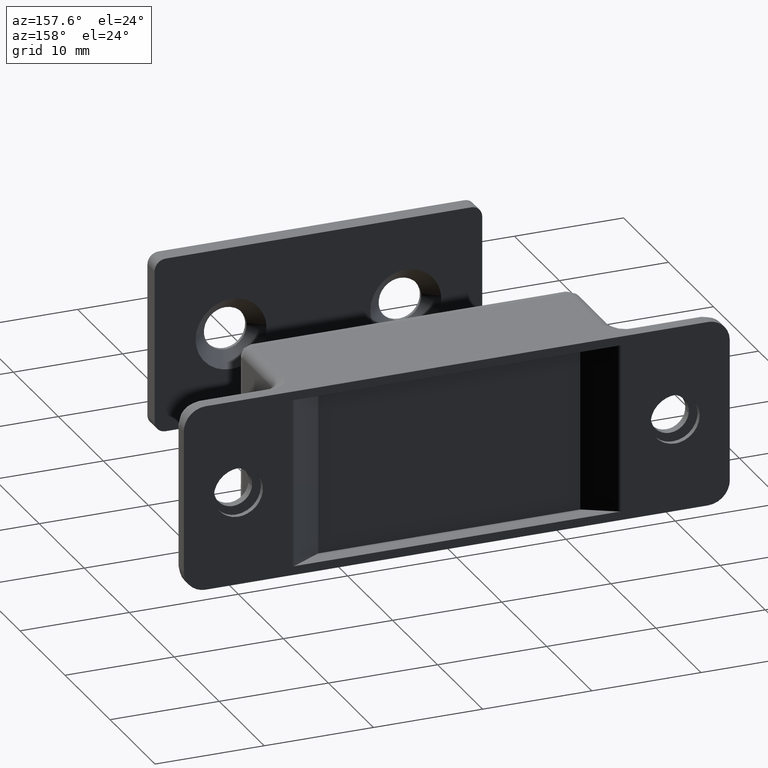
[diagram: clean part render]
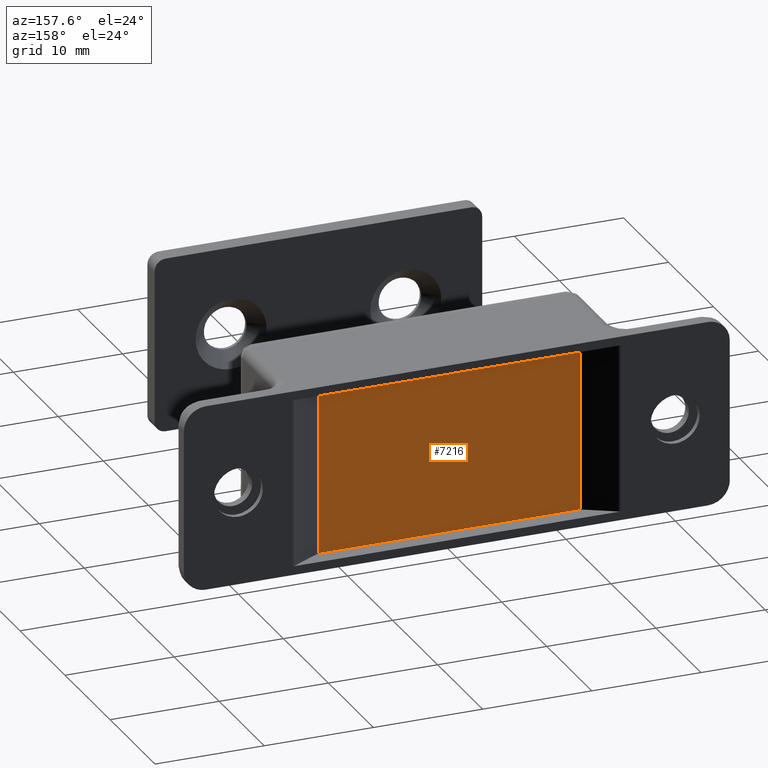
[diagram: same view with one face highlighted and labeled with its STEP entity id]
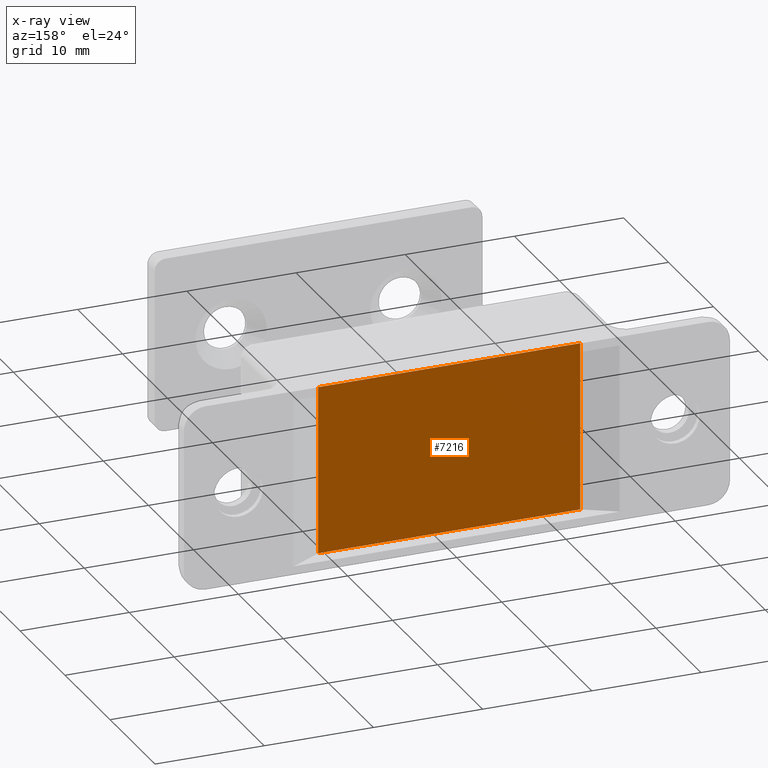
[diagram: x-ray of the same camera — body ghosted, the highlighted face saturated]
A machine part, auxiliary view. The second image highlights one B-rep face of the part: STEP entity #7216.
The next image is the same camera in x-ray: the body ghosted, the highlighted face saturated — about 0% of this face is hidden behind the body in this view.
In plain terms, the highlighted face is a freeform B-spline surface patch.
Its self-contained STEP definition (entity closure, byte-faithful):
#7015=CARTESIAN_POINT('',(11.999999999999879,-1.690598962264745,7.700000000000000));
#7016=VERTEX_POINT('',#7015);
#7022=CARTESIAN_POINT('',(-12.0,-1.690598962264685,7.700000000000000));
#7023=VERTEX_POINT('',#7022);
#7024=CARTESIAN_POINT('',(11.999999999999879,-1.690598962264745,7.700000000000000));
#7025=CARTESIAN_POINT('',(-12.0,-1.690598962264685,7.700000000000000));
#7026=QUASI_UNIFORM_CURVE('',1,(#7024,#7025),.UNSPECIFIED.,.F.,.U.);
#7027=EDGE_CURVE('',#7016,#7023,#7026,.T.);
#7079=CARTESIAN_POINT('',(-12.0,-1.690598962264685,-7.700000000000000));
#7080=VERTEX_POINT('',#7079);
#7086=CARTESIAN_POINT('',(11.999999999999879,-1.690598962264745,-7.700000000000000));
#7087=VERTEX_POINT('',#7086);
#7088=CARTESIAN_POINT('',(11.999999999999879,-1.690598962264745,-7.700000000000000));
#7089=CARTESIAN_POINT('',(-12.0,-1.690598962264685,-7.700000000000000));
#7090=QUASI_UNIFORM_CURVE('',1,(#7088,#7089),.UNSPECIFIED.,.F.,.U.);
#7091=EDGE_CURVE('',#7087,#7080,#7090,.T.);
#7193=CARTESIAN_POINT('',(-12.0,-1.690598962264685,-7.700000000000000));
#7194=CARTESIAN_POINT('',(-12.0,-1.690598962264685,7.700000000000000));
#7195=QUASI_UNIFORM_CURVE('',1,(#7193,#7194),.UNSPECIFIED.,.F.,.U.);
#7196=EDGE_CURVE('',#7080,#7023,#7195,.T.);
#7201=CARTESIAN_POINT('',(13.198799953483221,-1.690598962264745,-8.469229770568012));
#7202=CARTESIAN_POINT('',(-13.198800597213500,-1.690598962264745,-8.469229770568012));
#7203=CARTESIAN_POINT('',(13.198799953483221,-1.690598962264745,8.469229219821097));
#7204=CARTESIAN_POINT('',(-13.198800597213500,-1.690598962264745,8.469229219821097));
#7205=B_SPLINE_SURFACE_WITH_KNOTS('',1,1,((#7201,#7203),(#7202,#7204)),.UNSPECIFIED.,.F.,.F.,.U.,(2,2),(2,2),(0.0,26.397600550696719),(0.0,16.938458990389108),.UNSPECIFIED.);
#7206=ORIENTED_EDGE('',*,*,#7027,.F.);
#7207=CARTESIAN_POINT('',(11.999999999999879,-1.690598962264745,-7.700000000000000));
#7208=CARTESIAN_POINT('',(11.999999999999879,-1.690598962264745,7.700000000000000));
#7209=QUASI_UNIFORM_CURVE('',1,(#7207,#7208),.UNSPECIFIED.,.F.,.U.);
#7210=EDGE_CURVE('',#7087,#7016,#7209,.T.);
#7211=ORIENTED_EDGE('',*,*,#7210,.F.);
#7212=ORIENTED_EDGE('',*,*,#7091,.T.);
#7213=ORIENTED_EDGE('',*,*,#7196,.T.);
#7214=EDGE_LOOP('',(#7206,#7211,#7212,#7213));
#7215=FACE_OUTER_BOUND('',#7214,.T.);
#7216=ADVANCED_FACE('',(#7215),#7205,.T.);